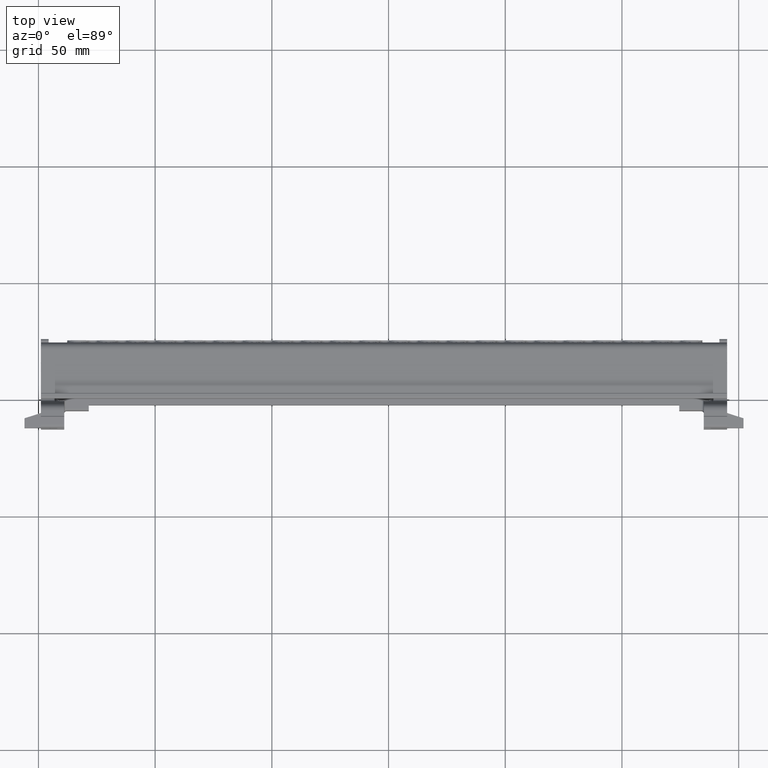
[diagram: clean part render]
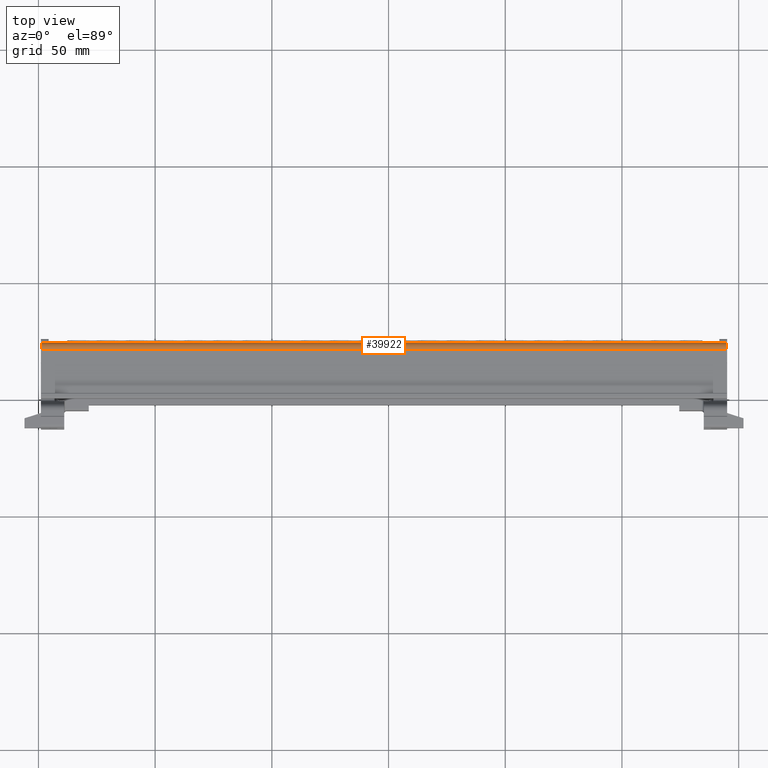
[diagram: same view with one face highlighted and labeled with its STEP entity id]
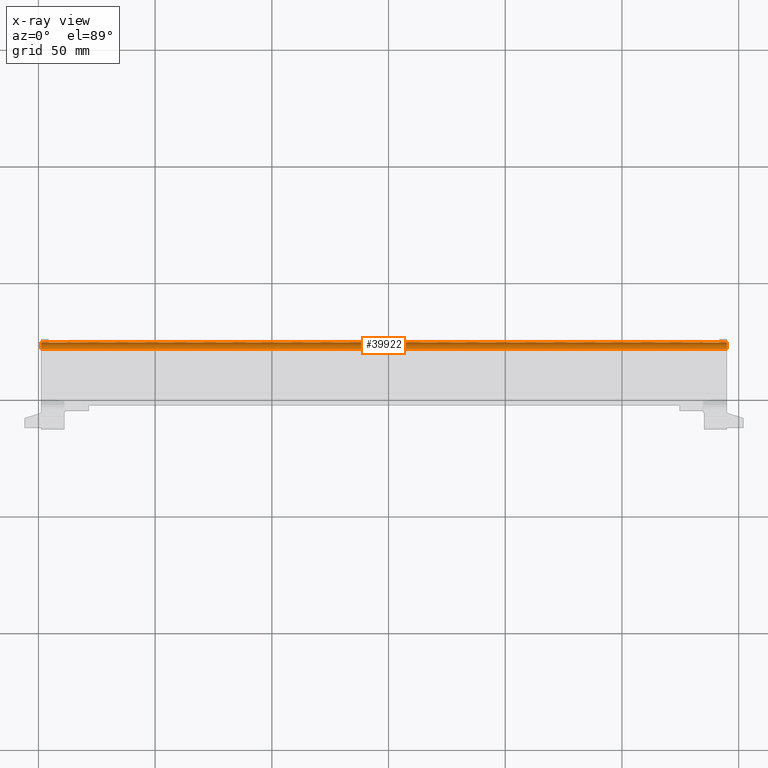
[diagram: x-ray of the same camera — body ghosted, the highlighted face saturated]
A machine part, top view. The second image highlights one B-rep face of the part: STEP entity #39922.
The next image is the same camera in x-ray: the body ghosted, the highlighted face saturated — about 0% of this face is hidden behind the body in this view.
In plain terms, the highlighted cylindrical surface (edge-blend (fillet) strip) has radius 3 mm, axis along (-1, 0, 0).
Its self-contained STEP definition (entity closure, byte-faithful):
#391 = EDGE_LOOP ( 'NONE', ( #2620, #2627, #2592, #2638 ) ) ;
#2592 = ORIENTED_EDGE ( 'NONE', *, *, #34634, .F. ) ;
#2620 = ORIENTED_EDGE ( 'NONE', *, *, #34499, .T. ) ;
#2627 = ORIENTED_EDGE ( 'NONE', *, *, #40428, .T. ) ;
#2638 = ORIENTED_EDGE ( 'NONE', *, *, #40398, .F. ) ;
#3655 = LINE ( 'NONE', #3659, #21554 ) ;
#3659 = CARTESIAN_POINT ( 'NONE',  ( 39.14730230417460200, 74.21282648292927300, 44.07424903034260700 ) ) ;
#3661 = DIRECTION ( 'NONE',  ( -1.000000000000000000, 7.897574933817843200E-015, 3.853197191115062900E-015 ) ) ;
#7417 = VERTEX_POINT ( 'NONE', #18751 ) ;
#7463 = VERTEX_POINT ( 'NONE', #18840 ) ;
#7477 = VERTEX_POINT ( 'NONE', #18824 ) ;
#7507 = VERTEX_POINT ( 'NONE', #14648 ) ;
#9130 = DIRECTION ( 'NONE',  ( -1.000000000000000000, 7.897574933817843200E-015, 3.853197191115062900E-015 ) ) ;
#9147 = CARTESIAN_POINT ( 'NONE',  ( -150.8526976958254700, 71.26518187041278900, 47.07379214778585200 ) ) ;
#9155 = LINE ( 'NONE', #9147, #21566 ) ;
#14648 = CARTESIAN_POINT ( 'NONE',  ( -248.8526976958254100, 71.26518187041357100, 47.07379214778622200 ) ) ;
#18751 = CARTESIAN_POINT ( 'NONE',  ( 44.94730230417457100, 74.21282648292923100, 44.07424903034258500 ) ) ;
#18824 = CARTESIAN_POINT ( 'NONE',  ( -248.8526976958253800, 74.21282648293154700, 44.07424903034371500 ) ) ;
#18840 = CARTESIAN_POINT ( 'NONE',  ( 44.94730230417454200, 71.26518187041125400, 47.07379214778509200 ) ) ;
#21554 = VECTOR ( 'NONE', #3661, 1000.000000000000000 ) ;
#21566 = VECTOR ( 'NONE', #9130, 1000.000000000000000 ) ;
#26153 = AXIS2_PLACEMENT_3D ( 'NONE', #47837, #47873, #47812 ) ;
#29248 = CIRCLE ( 'NONE', #29303, 3.000000000000002700 ) ;
#29303 = AXIS2_PLACEMENT_3D ( 'NONE', #47460, #47420, #47499 ) ;
#29352 = CIRCLE ( 'NONE', #29375, 3.000000000000002700 ) ;
#29375 = AXIS2_PLACEMENT_3D ( 'NONE', #47749, #47799, #47705 ) ;
#34499 = EDGE_CURVE ( 'NONE', #7417, #7477, #3655, .T. ) ;
#34634 = EDGE_CURVE ( 'NONE', #7463, #7507, #9155, .T. ) ;
#39922 = ADVANCED_FACE ( 'NONE', ( #47808 ), #47834, .T. ) ;
#40398 = EDGE_CURVE ( 'NONE', #7417, #7463, #29248, .T. ) ;
#40428 = EDGE_CURVE ( 'NONE', #7477, #7507, #29352, .T. ) ;
#47420 = DIRECTION ( 'NONE',  ( 1.000000000000000000, -7.931712594434356000E-015, -3.864784591637045400E-015 ) ) ;
#47460 = CARTESIAN_POINT ( 'NONE',  ( 44.94730230417454200, 71.21282648293075100, 44.07424903034179700 ) ) ;
#47499 = DIRECTION ( 'NONE',  ( 6.938893903907222100E-015, 1.000000000000000000, 0.0000000000000000000 ) ) ;
#47705 = DIRECTION ( 'NONE',  ( 9.251858538542962800E-015, 1.000000000000000000, 0.0000000000000000000 ) ) ;
#47749 = CARTESIAN_POINT ( 'NONE',  ( -248.8526976958254100, 71.21282648293308200, 44.07424903034292600 ) ) ;
#47799 = DIRECTION ( 'NONE',  ( 1.000000000000000000, -7.931712594434356000E-015, -3.864784591637045400E-015 ) ) ;
#47808 = FACE_OUTER_BOUND ( 'NONE', #391, .T. ) ;
#47812 = DIRECTION ( 'NONE',  ( 0.0000000000000000000, -6.107034461466653900E-007, 0.9999999999998134800 ) ) ;
#47834 = CYLINDRICAL_SURFACE ( 'NONE', #26153, 3.000000000000000000 ) ;
#47837 = CARTESIAN_POINT ( 'NONE',  ( -150.8526976958254700, 71.21282648293230000, 44.07424903034255000 ) ) ;
#47873 = DIRECTION ( 'NONE',  ( -1.000000000000000000, 7.897574933817843200E-015, 3.853197191115062900E-015 ) ) ;